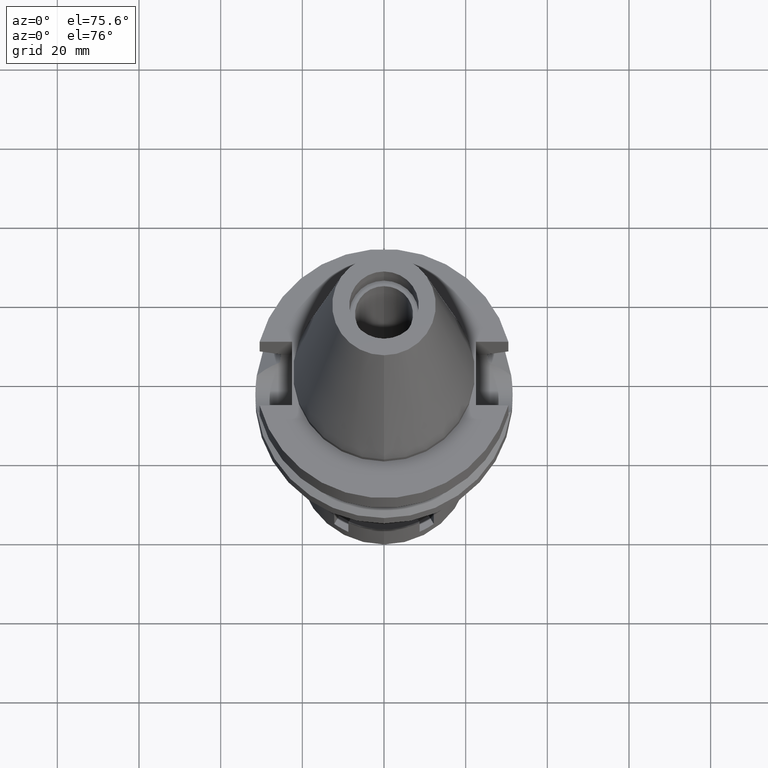
[diagram: clean part render]
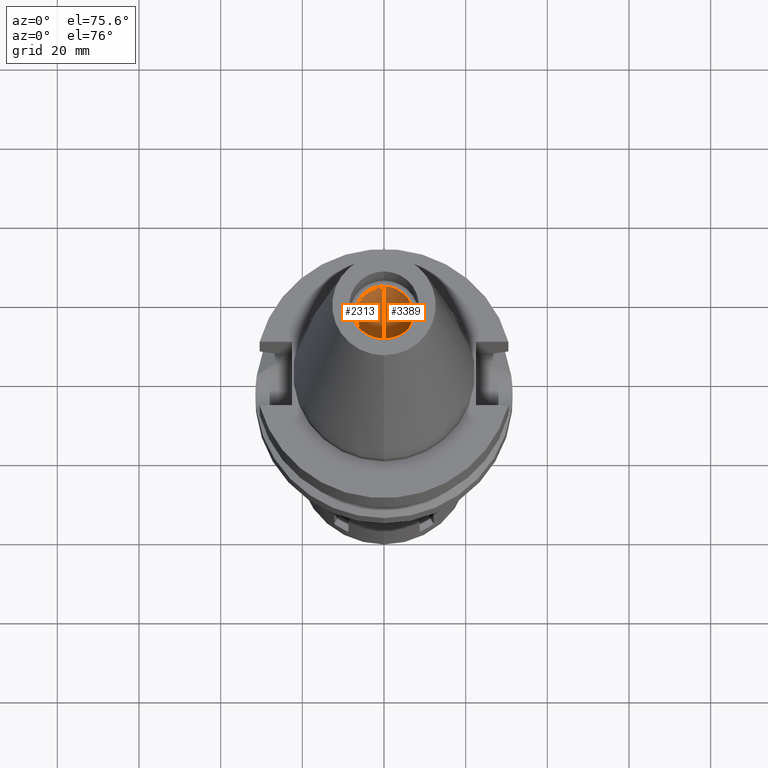
[diagram: same view with one multi-face feature highlighted, each face labeled with its STEP entity id]
A machine part, auxiliary view. The highlighted faces form ONE feature: a constant-radius fillet chain: 2 tangent blend faces with common blend radius 7.1 mm. The faces share edges in the B-rep.
Their STEP definitions:
[1] entity #3389 (Cylinder):
#1 = CARTESIAN_POINT ( 'NONE',  ( 0.0000000000000000000, -7.100000000000000533, 56.39999999999999858 ) ) ;
#5 = VERTEX_POINT ( 'NONE', #22 ) ;
#22 = CARTESIAN_POINT ( 'NONE',  ( 0.0000000000000000000, 7.100000000000000533, 56.39999999999999858 ) ) ;
#29 = DIRECTION ( 'NONE',  ( 0.0000000000000000000, 0.0000000000000000000, 1.000000000000000000 ) ) ;
#62 = EDGE_LOOP ( 'NONE', ( #3286, #3430, #2808, #2220 ) ) ;
#112 = LINE ( 'NONE', #2020, #1307 ) ;
#128 = EDGE_CURVE ( 'NONE', #542, #5, #1243, .T. ) ;
#542 = VERTEX_POINT ( 'NONE', #1 ) ;
#773 = DIRECTION ( 'NONE',  ( 0.0000000000000000000, 1.000000000000000000, 0.0000000000000000000 ) ) ;
#810 = EDGE_CURVE ( 'NONE', #1853, #5, #814, .T. ) ;
#814 = LINE ( 'NONE', #1892, #1470 ) ;
#897 = AXIS2_PLACEMENT_3D ( 'NONE', #2871, #2609, #3446 ) ;
#1243 = CIRCLE ( 'NONE', #3222, 7.100000000000000533 ) ;
#1269 = CARTESIAN_POINT ( 'NONE',  ( 0.0000000000000000000, 7.100000000000000533, 0.0000000000000000000 ) ) ;
#1307 = VECTOR ( 'NONE', #1783, 1000.000000000000000 ) ;
#1334 = DIRECTION ( 'NONE',  ( 0.0000000000000000000, 0.0000000000000000000, 1.000000000000000000 ) ) ;
#1350 = AXIS2_PLACEMENT_3D ( 'NONE', #2374, #2392, #773 ) ;
#1470 = VECTOR ( 'NONE', #29, 1000.000000000000000 ) ;
#1504 = FACE_OUTER_BOUND ( 'NONE', #62, .T. ) ;
#1783 = DIRECTION ( 'NONE',  ( 0.0000000000000000000, 0.0000000000000000000, 1.000000000000000000 ) ) ;
#1825 = CYLINDRICAL_SURFACE ( 'NONE', #897, 7.100000000000000533 ) ;
#1853 = VERTEX_POINT ( 'NONE', #1269 ) ;
#1892 = CARTESIAN_POINT ( 'NONE',  ( 0.0000000000000000000, 7.100000000000000533, 0.0000000000000000000 ) ) ;
#2020 = CARTESIAN_POINT ( 'NONE',  ( 0.0000000000000000000, -7.100000000000000533, 0.0000000000000000000 ) ) ;
#2111 = CARTESIAN_POINT ( 'NONE',  ( 0.0000000000000000000, -7.100000000000000533, 0.0000000000000000000 ) ) ;
#2220 = ORIENTED_EDGE ( 'NONE', *, *, #810, .F. ) ;
#2240 = EDGE_CURVE ( 'NONE', #2867, #542, #112, .T. ) ;
#2299 = EDGE_CURVE ( 'NONE', #1853, #2867, #3341, .T. ) ;
#2374 = CARTESIAN_POINT ( 'NONE',  ( 0.0000000000000000000, 2.115822274886999895E-14, 1.421085471519999843E-14 ) ) ;
#2392 = DIRECTION ( 'NONE',  ( 0.0000000000000000000, 0.0000000000000000000, -1.000000000000000000 ) ) ;
#2405 = DIRECTION ( 'NONE',  ( 0.0000000000000000000, -1.000000000000000000, 0.0000000000000000000 ) ) ;
#2609 = DIRECTION ( 'NONE',  ( 0.0000000000000000000, 0.0000000000000000000, -1.000000000000000000 ) ) ;
#2808 = ORIENTED_EDGE ( 'NONE', *, *, #128, .T. ) ;
#2867 = VERTEX_POINT ( 'NONE', #2111 ) ;
#2871 = CARTESIAN_POINT ( 'NONE',  ( 0.0000000000000000000, 2.115822274886999895E-14, 72.76999999999999602 ) ) ;
#3222 = AXIS2_PLACEMENT_3D ( 'NONE', #3236, #1334, #2405 ) ;
#3236 = CARTESIAN_POINT ( 'NONE',  ( 0.0000000000000000000, 2.115822274886999895E-14, 56.39999999999999858 ) ) ;
#3286 = ORIENTED_EDGE ( 'NONE', *, *, #2299, .T. ) ;
#3341 = CIRCLE ( 'NONE', #1350, 7.100000000000000533 ) ;
#3389 = ADVANCED_FACE ( 'NONE', ( #1504 ), #1825, .F. ) ;
#3430 = ORIENTED_EDGE ( 'NONE', *, *, #2240, .T. ) ;
#3446 = DIRECTION ( 'NONE',  ( 0.0000000000000000000, -1.000000000000000000, 0.0000000000000000000 ) ) ;
[2] entity #2313 (Cylinder):
#1 = CARTESIAN_POINT ( 'NONE',  ( 0.0000000000000000000, -7.100000000000000533, 56.39999999999999858 ) ) ;
#5 = VERTEX_POINT ( 'NONE', #22 ) ;
#22 = CARTESIAN_POINT ( 'NONE',  ( 0.0000000000000000000, 7.100000000000000533, 56.39999999999999858 ) ) ;
#29 = DIRECTION ( 'NONE',  ( 0.0000000000000000000, 0.0000000000000000000, 1.000000000000000000 ) ) ;
#112 = LINE ( 'NONE', #2020, #1307 ) ;
#163 = DIRECTION ( 'NONE',  ( 0.0000000000000000000, -1.000000000000000000, 0.0000000000000000000 ) ) ;
#542 = VERTEX_POINT ( 'NONE', #1 ) ;
#697 = CARTESIAN_POINT ( 'NONE',  ( 0.0000000000000000000, 2.115822274886999895E-14, 56.39999999999999858 ) ) ;
#810 = EDGE_CURVE ( 'NONE', #1853, #5, #814, .T. ) ;
#814 = LINE ( 'NONE', #1892, #1470 ) ;
#1048 = EDGE_CURVE ( 'NONE', #2867, #1853, #1586, .T. ) ;
#1119 = DIRECTION ( 'NONE',  ( 0.0000000000000000000, -1.000000000000000000, 0.0000000000000000000 ) ) ;
#1260 = CYLINDRICAL_SURFACE ( 'NONE', #2878, 7.100000000000000533 ) ;
#1269 = CARTESIAN_POINT ( 'NONE',  ( 0.0000000000000000000, 7.100000000000000533, 0.0000000000000000000 ) ) ;
#1300 = DIRECTION ( 'NONE',  ( 0.0000000000000000000, 0.0000000000000000000, 1.000000000000000000 ) ) ;
#1307 = VECTOR ( 'NONE', #1783, 1000.000000000000000 ) ;
#1391 = ORIENTED_EDGE ( 'NONE', *, *, #2240, .F. ) ;
#1470 = VECTOR ( 'NONE', #29, 1000.000000000000000 ) ;
#1579 = CIRCLE ( 'NONE', #3170, 7.100000000000000533 ) ;
#1586 = CIRCLE ( 'NONE', #2143, 7.100000000000000533 ) ;
#1783 = DIRECTION ( 'NONE',  ( 0.0000000000000000000, 0.0000000000000000000, 1.000000000000000000 ) ) ;
#1853 = VERTEX_POINT ( 'NONE', #1269 ) ;
#1892 = CARTESIAN_POINT ( 'NONE',  ( 0.0000000000000000000, 7.100000000000000533, 0.0000000000000000000 ) ) ;
#1929 = EDGE_CURVE ( 'NONE', #5, #542, #1579, .T. ) ;
#2020 = CARTESIAN_POINT ( 'NONE',  ( 0.0000000000000000000, -7.100000000000000533, 0.0000000000000000000 ) ) ;
#2111 = CARTESIAN_POINT ( 'NONE',  ( 0.0000000000000000000, -7.100000000000000533, 0.0000000000000000000 ) ) ;
#2143 = AXIS2_PLACEMENT_3D ( 'NONE', #2194, #2738, #1119 ) ;
#2194 = CARTESIAN_POINT ( 'NONE',  ( 0.0000000000000000000, 2.115822274886999895E-14, 1.421085471519999843E-14 ) ) ;
#2240 = EDGE_CURVE ( 'NONE', #2867, #542, #112, .T. ) ;
#2308 = ORIENTED_EDGE ( 'NONE', *, *, #1048, .T. ) ;
#2313 = ADVANCED_FACE ( 'NONE', ( #3474 ), #1260, .F. ) ;
#2573 = DIRECTION ( 'NONE',  ( 0.0000000000000000000, 1.000000000000000000, 0.0000000000000000000 ) ) ;
#2577 = ORIENTED_EDGE ( 'NONE', *, *, #1929, .T. ) ;
#2617 = CARTESIAN_POINT ( 'NONE',  ( 0.0000000000000000000, 2.115822274886999895E-14, 72.76999999999999602 ) ) ;
#2681 = EDGE_LOOP ( 'NONE', ( #2577, #1391, #2308, #3271 ) ) ;
#2738 = DIRECTION ( 'NONE',  ( 0.0000000000000000000, 0.0000000000000000000, -1.000000000000000000 ) ) ;
#2867 = VERTEX_POINT ( 'NONE', #2111 ) ;
#2878 = AXIS2_PLACEMENT_3D ( 'NONE', #2617, #2900, #163 ) ;
#2900 = DIRECTION ( 'NONE',  ( 0.0000000000000000000, 0.0000000000000000000, -1.000000000000000000 ) ) ;
#3170 = AXIS2_PLACEMENT_3D ( 'NONE', #697, #1300, #2573 ) ;
#3271 = ORIENTED_EDGE ( 'NONE', *, *, #810, .T. ) ;
#3474 = FACE_OUTER_BOUND ( 'NONE', #2681, .T. ) ;